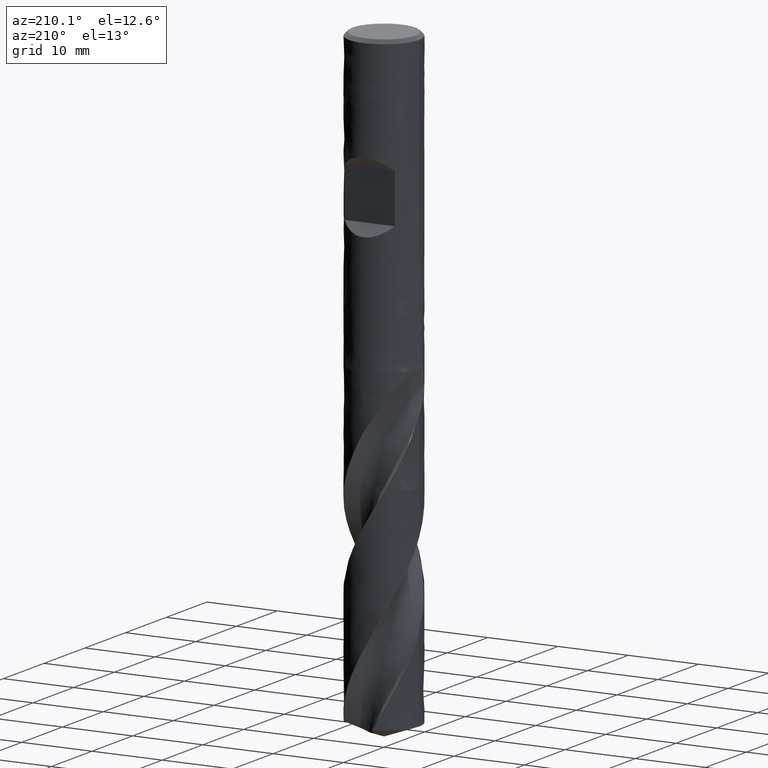
[diagram: clean part render]
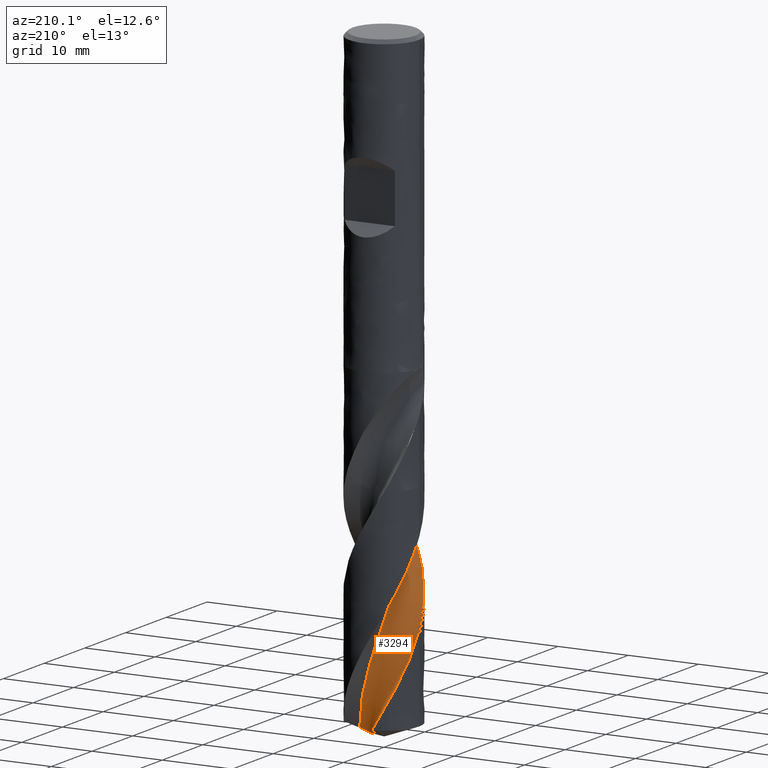
[diagram: same view with one face highlighted and labeled with its STEP entity id]
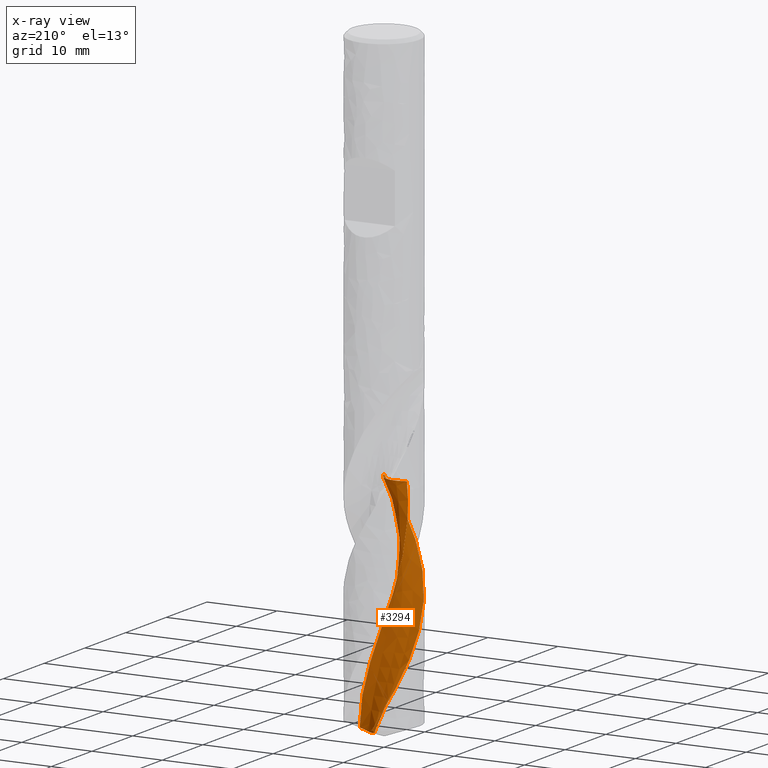
[diagram: x-ray of the same camera — body ghosted, the highlighted face saturated]
A machine part, auxiliary view. The second image highlights one B-rep face of the part: STEP entity #3294.
The next image is the same camera in x-ray: the body ghosted, the highlighted face saturated — about 0% of this face is hidden behind the body in this view.
In plain terms, the highlighted face is a freeform B-spline surface patch.
Its self-contained STEP definition (entity closure, byte-faithful):
#1899 = VERTEX_POINT('', #1900);
#1900 = CARTESIAN_POINT('', (-1.943946066787, -2.2761353100084, -57.));
#1906 = EDGE_CURVE('', #1899, #1907, #1909, .T.);
#1907 = VERTEX_POINT('', #1908);
#1908 = CARTESIAN_POINT('', (2.49888504584087, -4.33077054664327, -57.));
#1909 = B_SPLINE_CURVE_WITH_KNOTS('', 3, (#1910, #1911, #1912, #1913, #1914, #1915, #1916, #1917, #1918, #1919, #1920, #1921, #1922, #1923, #1924, #1925, #1926, #1927, #1928, #1929, #1930, #1931, #1932, #1933, #1934, #1935, #1936, #1937, #1938, #1939, #1940, #1941, #1942, #1943, #1944, #1945, #1946, #1947, #1948, #1949, #1950, #1951, #1952, #1953, #1954, #1955, #1956, #1957, #1958, #1959, #1960, #1961, #1962, #1963, #1964, #1965, #1966, #1967, #1968, #1969, #1970, #1971, #1972, #1973), .UNSPECIFIED., .F., .U., (4, 3, 3, 3, 3, 3, 3, 3, 3, 3, 3, 3, 3, 3, 3, 3, 3, 3, 3, 3, 3, 4), (0., 0.297376150028493, 0.594367108387545, 0.890982575190988, 1.18723009705755, 1.4831152333444, 1.77864167663977, 2.07381133312168, 2.36862436647171, 2.66307920740673, 2.8594675544147, 2.89837695632703, 3.1957271529752, 3.49269287368801, 3.78928366924074, 4.08550694952865, 4.38136814654139, 4.67687083203684, 4.97201679538179, 5.26680608513294, 5.56123701631977, 5.72273616709679), .UNSPECIFIED.);
#1910 = CARTESIAN_POINT('', (-1.94394606678699, -2.2761353100084, -57.));
#1911 = CARTESIAN_POINT('', (-1.85797356150517, -2.22679394847033, -57.));
#1912 = CARTESIAN_POINT('', (-1.76944407261665, -2.1816637274889, -57.));
#1913 = CARTESIAN_POINT('', (-1.67900884839017, -2.14107663789171, -57.));
#1914 = CARTESIAN_POINT('', (-1.58869076501374, -2.1005421207984, -57.));
#1915 = CARTESIAN_POINT('', (-1.49625085524377, -2.06443974368901, -57.));
#1916 = CARTESIAN_POINT('', (-1.40236737624665, -2.03303439968233, -57.));
#1917 = CARTESIAN_POINT('', (-1.30860259599298, -2.0016687620746, -57.));
#1918 = CARTESIAN_POINT('', (-1.21316901361972, -1.97491169215683, -57.));
#1919 = CARTESIAN_POINT('', (-1.11676508544159, -1.9529590187346, -57.));
#1920 = CARTESIAN_POINT('', (-1.02048074420762, -1.931033577119, -57.));
#1921 = CARTESIAN_POINT('', (-0.922994013113576, -1.91384720165759, -57.));
#1922 = CARTESIAN_POINT('', (-0.825016609200674, -1.90152536415722, -57.));
#1923 = CARTESIAN_POINT('', (-0.727159056411223, -1.88921859937778, -57.));
#1924 = CARTESIAN_POINT('', (-0.628574330360891, -1.88173455580945, -57.));
#1925 = CARTESIAN_POINT('', (-0.529980407622535, -1.87912773852788, -57.));
#1926 = CARTESIAN_POINT('', (-0.431506007444631, -1.87652408141549, -57.));
#1927 = CARTESIAN_POINT('', (-0.332783811336121, -1.87877949493968, -57.));
#1928 = CARTESIAN_POINT('', (-0.234531058069737, -1.88587759301818, -57.));
#1929 = CARTESIAN_POINT('', (-0.136396924600488, -1.89296712161718, -57.));
#1930 = CARTESIAN_POINT('', (-0.0384938747297053, -1.90490475831691, -57.));
#1931 = CARTESIAN_POINT('', (0.0584685173683539, -1.92160398243477, -57.));
#1932 = CARTESIAN_POINT('', (0.155313759782545, -1.93828303059798, -57.));
#1933 = CARTESIAN_POINT('', (0.251454165300081, -1.95975236130512, -57.));
#1934 = CARTESIAN_POINT('', (0.346194614588103, -1.98585674589081, -57.));
#1935 = CARTESIAN_POINT('', (0.440819955972164, -2.0119294141292, -57.));
#1936 = CARTESIAN_POINT('', (0.534276387144739, -2.04268857543289, -57.));
#1937 = CARTESIAN_POINT('', (0.625889832586888, -2.0779123724363, -57.));
#1938 = CARTESIAN_POINT('', (0.686991946095894, -2.10140508611313, -57.));
#1939 = CARTESIAN_POINT('', (0.747356968906936, -2.12691253730669, -57.));
#1940 = CARTESIAN_POINT('', (0.806791029678776, -2.15435280500469, -57.));
#1941 = CARTESIAN_POINT('', (0.81856639106394, -2.15978940254579, -57.));
#1942 = CARTESIAN_POINT('', (0.830306741690077, -2.16530248202443, -57.));
#1943 = CARTESIAN_POINT('', (0.842010600328535, -2.17089134787951, -57.));
#1944 = CARTESIAN_POINT('', (0.931452855841193, -2.2136021138993, -57.));
#1945 = CARTESIAN_POINT('', (1.01888280849404, -2.26080887943599, -57.));
#1946 = CARTESIAN_POINT('', (1.10365741057346, -2.31216443850669, -57.));
#1947 = CARTESIAN_POINT('', (1.18832239848482, -2.36345359447145, -57.));
#1948 = CARTESIAN_POINT('', (1.27054608158548, -2.41900629519376, -57.));
#1949 = CARTESIAN_POINT('', (1.34972526432922, -2.47841500429976, -57.));
#1950 = CARTESIAN_POINT('', (1.4288044817716, -2.53774870872267, -57.));
#1951 = CARTESIAN_POINT('', (1.50503990875809, -2.60107348302777, -57.));
#1952 = CARTESIAN_POINT('', (1.57787368847481, -2.66792594479262, -57.));
#1953 = CARTESIAN_POINT('', (1.65061721749514, -2.73469556750597, -57.));
#1954 = CARTESIAN_POINT('', (1.7201446487521, -2.80514667902638, -57.));
#1955 = CARTESIAN_POINT('', (1.78594846933808, -2.8787650240764, -57.));
#1956 = CARTESIAN_POINT('', (1.85167185579055, -2.95229338304745, -57.));
#1957 = CARTESIAN_POINT('', (1.913840372072, -3.0291597954236, -57.));
#1958 = CARTESIAN_POINT('', (1.97200132808736, -3.10880454600477, -57.));
#1959 = CARTESIAN_POINT('', (2.03009180722775, -3.18835278659861, -57.));
#1960 = CARTESIAN_POINT('', (2.08432519739078, -3.27086534887041, -57.));
#1961 = CARTESIAN_POINT('', (2.13430754413501, -3.35574285685854, -57.));
#1962 = CARTESIAN_POINT('', (2.18422955366035, -3.44051790321547, -57.));
#1963 = CARTESIAN_POINT('', (2.23003146101638, -3.52785707251576, -57.));
#1964 = CARTESIAN_POINT('', (2.27138135986519, -3.6171274560988, -57.));
#1965 = CARTESIAN_POINT('', (2.31268128880468, -3.7062899595395, -57.));
#1966 = CARTESIAN_POINT('', (2.34963956826356, -3.79759398341438, -57.));
#1967 = CARTESIAN_POINT('', (2.38198902354078, -3.89037948278518, -57.));
#1968 = CARTESIAN_POINT('', (2.4142991534261, -3.98305218810442, -57.));
#1969 = CARTESIAN_POINT('', (2.44208939980682, -4.07742566514547, -57.));
#1970 = CARTESIAN_POINT('', (2.46515935177571, -4.17281933433031, -57.));
#1971 = CARTESIAN_POINT('', (2.47781351700361, -4.22514398819991, -57.));
#1972 = CARTESIAN_POINT('', (2.48906530015112, -4.27784068838937, -57.));
#1973 = CARTESIAN_POINT('', (2.49888504584087, -4.33077054664327, -57.));
#2213 = VERTEX_POINT('', #2214);
#2214 = CARTESIAN_POINT('', (2.664890963748, 1.36431395231353, -87.9103363101733));
#2245 = EDGE_CURVE('', #2213, #1899, #2246, .T.);
#2246 = (
   BOUNDED_CURVE ()
   B_SPLINE_CURVE (3, (#2247, #2248, #2249, #2250, #2251, #2252, #2253, #2254, #2255, #2256, #2257, #2258, #2259, #2260, #2261, #2262, #2263, #2264, #2265, #2266, #2267, #2268, #2269, #2270, #2271, #2272, #2273, #2274, #2275, #2276, #2277, #2278, #2279, #2280, #2281, #2282, #2283), .UNSPECIFIED., .F., .U.)
   B_SPLINE_CURVE_WITH_KNOTS ((4, 1, 1, 1, 1, 1, 1, 1, 1, 1, 1, 1, 1, 1, 1, 1, 1, 1, 1, 1, 1, 1, 1, 1, 1, 1, 1, 1, 1, 1, 1, 1, 1, 1, 4), (1.13966368982672, 1.84588235294118, 2.76882352941176, 3.69176470588235, 4.61470588235294, 5.53764705882353, 6.46058823529412, 7.38352941176471, 8.30647058823529, 9.22941176470588, 10.1523529411765, 11.0752941176471, 11.9982352941176, 12.9211764705882, 13.8441176470588, 14.7670588235294, 15.69, 16.6129411764706, 17.5358823529412, 18.4588235294118, 19.3817647058824, 20.3047058823529, 21.2276470588235, 22.1505882352941, 23.0735294117647, 23.9964705882353, 24.9194117647059, 25.8423529411765, 26.7652941176471, 27.6882352941176, 28.6111764705882, 29.5341176470588, 30.4570588235294, 31.38, 32.05), .UNSPECIFIED.)
   CURVE ()
   GEOMETRIC_REPRESENTATION_ITEM ()
   RATIONAL_B_SPLINE_CURVE ((1., 1., 1., 1., 1., 1., 1., 1., 1., 1., 1., 1., 1., 1., 1., 1., 1., 1., 1., 1., 1., 1., 1., 1., 1., 1., 1., 1., 1., 1., 1., 1., 1., 1., 1., 1., 1.))
   REPRESENTATION_ITEM ('')
);
#2247 = CARTESIAN_POINT('', (2.664890963748, 1.36431395231353, -87.9103363101733));
#2248 = CARTESIAN_POINT('', (2.62642999897173, 1.43510392879712, -87.6749300891351));
#2249 = CARTESIAN_POINT('', (2.53129954278614, 1.59471649716094, -87.1318768092735));
#2250 = CARTESIAN_POINT('', (2.36023488456593, 1.82962736146804, -86.2811764705882));
#2251 = CARTESIAN_POINT('', (2.14967578241432, 2.06328340726644, -85.3582352941176));
#2252 = CARTESIAN_POINT('', (1.91650201256395, 2.27334430560004, -84.435294117647));
#2253 = CARTESIAN_POINT('', (1.66329460536174, 2.45767707679595, -83.5123529411765));
#2254 = CARTESIAN_POINT('', (1.3928284774366, 2.61442323535653, -82.5894117647059));
#2255 = CARTESIAN_POINT('', (1.10804563986073, 2.74201720429834, -81.6664705882353));
#2256 = CARTESIAN_POINT('', (0.812024554070752, 2.83920032396855, -80.7435294117647));
#2257 = CARTESIAN_POINT('', (0.507948972623372, 2.90503223994927, -79.8205882352941));
#2258 = CARTESIAN_POINT('', (0.199075740863782, 2.93889907605671, -78.8976470588235));
#2259 = CARTESIAN_POINT('', (-0.111297922487304, 2.94051847043869, -77.9747058823529));
#2260 = CARTESIAN_POINT('', (-0.419867422697814, 2.9099414076651, -77.0517647058823));
#2261 = CARTESIAN_POINT('', (-0.723353746303104, 2.84755085359159, -76.1288235294118));
#2262 = CARTESIAN_POINT('', (-1.01853608210486, 2.75405721479071, -75.2058823529412));
#2263 = CARTESIAN_POINT('', (-1.30228380859104, 2.63049067470409, -74.2829411764706));
#2264 = CARTESIAN_POINT('', (-1.5715875584372, 2.47819048425644, -73.36));
#2265 = CARTESIAN_POINT('', (-1.82358907911876, 2.29879131065543, -72.4370588235294));
#2266 = CARTESIAN_POINT('', (-2.05560961967127, 2.09420677287884, -71.5141176470588));
#2267 = CARTESIAN_POINT('', (-2.26517658658108, 1.86661031614434, -70.5911764705882));
#2268 = CARTESIAN_POINT('', (-2.45004822674199, 1.61841360021124, -69.6682352941176));
#2269 = CARTESIAN_POINT('', (-2.60823611223218, 1.3522425975412, -68.745294117647));
#2270 = CARTESIAN_POINT('', (-2.73802522022859, 1.07091161705879, -67.8223529411765));
#2271 = CARTESIAN_POINT('', (-2.83799142163729, 0.777395487136252, -66.8994117647059));
#2272 = CARTESIAN_POINT('', (-2.90701621354904, 0.474800148228188, -65.9764705882353));
#2273 = CARTESIAN_POINT('', (-2.9442985544122, 0.16633191791676, -65.0535294117647));
#2274 = CARTESIAN_POINT('', (-2.94936368250959, -0.144734288927696, -64.1305882352941));
#2275 = CARTESIAN_POINT('', (-2.92206883342864, -0.455087520188211, -63.2076470588235));
#2276 = CARTESIAN_POINT('', (-2.86260576213971, -0.761413748426952, -62.2847058823529));
#2277 = CARTESIAN_POINT('', (-2.77150013790735, -1.06042924455349, -61.3617647058824));
#2278 = CARTESIAN_POINT('', (-2.64960740165895, -1.34891289930997, -60.4388235294118));
#2279 = CARTESIAN_POINT('', (-2.49810659226121, -1.62374151493769, -59.5158823529412));
#2280 = CARTESIAN_POINT('', (-2.31848662663383, -1.8819116117339, -58.5929411764706));
#2281 = CARTESIAN_POINT('', (-2.13135922578749, -2.09880204824288, -57.7543137254902));
#2282 = CARTESIAN_POINT('', (-2.00082548673635, -2.22509939446573, -57.2233333333333));
#2283 = CARTESIAN_POINT('', (-1.943946066787, -2.2761353100084, -57.));
#3177 = EDGE_CURVE('', #1907, #3178, #3180, .T.);
#3178 = VERTEX_POINT('', #3179);
#3179 = CARTESIAN_POINT('', (1.1566916907648, -4.86436679666692, -59.5164099374215));
#3180 = B_SPLINE_CURVE_WITH_KNOTS('', 3, (#3181, #3182, #3183, #3184, #3185, #3186, #3187, #3188, #3189, #3190, #3191, #3192, #3193), .UNSPECIFIED., .F., .U., (4, 3, 3, 3, 4), (6.06441392951674, 6.82179919602982, 7.81814487985161, 8.81417588092939, 8.96811837034174), .UNSPECIFIED.);
#3181 = CARTESIAN_POINT('', (2.49888504584087, -4.33077054664327, -57.));
#3182 = CARTESIAN_POINT('', (2.38969221864414, -4.39377557543809, -57.2187332412499));
#3183 = CARTESIAN_POINT('', (2.278100000907, -4.45265584305964, -57.4375579107154));
#3184 = CARTESIAN_POINT('', (2.16449076685904, -4.50721418618881, -57.6563118069695));
#3185 = CARTESIAN_POINT('', (2.01503701460013, -4.57898607309583, -57.9440841072619));
#3186 = CARTESIAN_POINT('', (1.86197506396421, -4.64333106018895, -58.2319526453618));
#3187 = CARTESIAN_POINT('', (1.70616964253585, -4.69989203608847, -58.5197478004442));
#3188 = CARTESIAN_POINT('', (1.55041343021067, -4.75643514794404, -58.8074520591934));
#3189 = CARTESIAN_POINT('', (1.3918206533134, -4.80523409699811, -59.0952602127512));
#3190 = CARTESIAN_POINT('', (1.23127317654732, -4.84602583203134, -59.3829951667204));
#3191 = CARTESIAN_POINT('', (1.20645961329929, -4.8523304362371, -59.4274663077362));
#3192 = CARTESIAN_POINT('', (1.18159802976536, -4.85844434949681, -59.4719381234759));
#3193 = CARTESIAN_POINT('', (1.15669169076486, -4.86436679666691, -59.5164099374214));
#3294 = ADVANCED_FACE('', (#3295), #3472, .T.);
#3295 = FACE_OUTER_BOUND('', #3296, .T.);
#3296 = EDGE_LOOP('', (#3297, #3298, #3299, #3422, #3437, #3471));
#3297 = ORIENTED_EDGE('', *, *, #1906, .F.);
#3298 = ORIENTED_EDGE('', *, *, #2245, .F.);
#3299 = ORIENTED_EDGE('', *, *, #3300, .T.);
#3300 = EDGE_CURVE('', #2213, #3301, #3303, .T.);
#3301 = VERTEX_POINT('', #3302);
#3302 = CARTESIAN_POINT('', (-1.06848472938849, 4.88450001362101, -87.180148828669));
#3303 = B_SPLINE_CURVE_WITH_KNOTS('', 3, (#3304, #3305, #3306, #3307, #3308, #3309, #3310, #3311, #3312, #3313, #3314, #3315, #3316, #3317, #3318, #3319, #3320, #3321, #3322, #3323, #3324, #3325, #3326, #3327, #3328, #3329, #3330, #3331, #3332, #3333, #3334, #3335, #3336, #3337, #3338, #3339, #3340, #3341, #3342, #3343, #3344, #3345, #3346, #3347, #3348, #3349, #3350, #3351, #3352, #3353, #3354, #3355, #3356, #3357, #3358, #3359, #3360, #3361, #3362, #3363, #3364, #3365, #3366, #3367, #3368, #3369, #3370, #3371, #3372, #3373, #3374, #3375, #3376, #3377, #3378, #3379, #3380, #3381, #3382, #3383, #3384, #3385, #3386, #3387, #3388, #3389, #3390, #3391, #3392, #3393, #3394, #3395, #3396, #3397, #3398, #3399, #3400, #3401, #3402, #3403, #3404, #3405, #3406, #3407, #3408, #3409, #3410, #3411, #3412, #3413, #3414, #3415, #3416, #3417, #3418, #3419, #3420, #3421), .UNSPECIFIED., .F., .U., (4, 3, 3, 3, 3, 3, 3, 3, 3, 3, 3, 3, 3, 3, 3, 3, 3, 3, 3, 3, 3, 3, 3, 3, 3, 3, 3, 3, 3, 3, 3, 3, 3, 3, 3, 3, 3, 3, 3, 4), (0., 0.197311608456988, 0.394426137177449, 0.591270898263195, 0.722394193149912, 0.853404632999981, 0.984298542771566, 1.1150818914677, 1.24577332454157, 1.37640557759563, 1.50702375916283, 1.63767955734445, 1.76842203120691, 1.89928767974293, 2.03029348273707, 2.16143547447586, 2.29269273475366, 2.42403438861126, 2.55542668277052, 2.68683821437715, 2.81824278506341, 2.90583155846242, 2.93179391962157, 3.06371749962209, 3.10268698378051, 3.14168118420531, 3.34051841214481, 3.53887896757993, 3.73684550373206, 3.93448606408614, 4.13185489230583, 4.32899444299252, 4.52593756193721, 4.72270943490355, 4.91932919221835, 5.11581117521406, 5.31216591135465, 5.50840085234765, 5.80188165608003, 5.96621023325195), .UNSPECIFIED.);
#3304 = CARTESIAN_POINT('', (2.664890963748, 1.36431395231353, -87.9103363101733));
#3305 = CARTESIAN_POINT('', (2.60473043398158, 1.34935673497477, -87.9323080131903));
#3306 = CARTESIAN_POINT('', (2.54380334798653, 1.33693238858383, -87.9540740705926));
#3307 = CARTESIAN_POINT('', (2.48237976544271, 1.32716865278358, -87.9754651060157));
#3308 = CARTESIAN_POINT('', (2.42101753429913, 1.31741466924522, -87.9968347755411));
#3309 = CARTESIAN_POINT('', (2.35905438100487, 1.31029984830585, -88.0178672443152));
#3310 = CARTESIAN_POINT('', (2.29677988474393, 1.30592479457283, -88.0383580325306));
#3311 = CARTESIAN_POINT('', (2.23459061631307, 1.3015557284649, -88.0588207773973));
#3312 = CARTESIAN_POINT('', (2.17197771604358, 1.29991180005495, -88.078780754545));
#3313 = CARTESIAN_POINT('', (2.10924918819991, 1.30105776932835, -88.0979936752779));
#3314 = CARTESIAN_POINT('', (2.06746412260362, 1.30182112856706, -88.1107918897542));
#3315 = CARTESIAN_POINT('', (2.02558366750209, 1.30382190741821, -88.1232715142702));
#3316 = CARTESIAN_POINT('', (1.98370355472888, 1.30706788984404, -88.1353499442257));
#3317 = CARTESIAN_POINT('', (1.94185948727978, 1.3103110785217, -88.1474179785328));
#3318 = CARTESIAN_POINT('', (1.89997840026036, 1.31480039065715, -88.1590961847967));
#3319 = CARTESIAN_POINT('', (1.85815946433537, 1.32053224572603, -88.1702945838383));
#3320 = CARTESIAN_POINT('', (1.81637772517035, 1.32625900247206, -88.1814830222208));
#3321 = CARTESIAN_POINT('', (1.77461923657037, 1.3332315947184, -88.1922026958083));
#3322 = CARTESIAN_POINT('', (1.73298637451085, 1.34143278307359, -88.2023582819665));
#3323 = CARTESIAN_POINT('', (1.69138867813636, 1.34962704419889, -88.2125052900898));
#3324 = CARTESIAN_POINT('', (1.64987633834907, 1.35905590417181, -88.2220986144094));
#3325 = CARTESIAN_POINT('', (1.60855438294979, 1.36968606326562, -88.2310413070984));
#3326 = CARTESIAN_POINT('', (1.56726146896353, 1.38030875139545, -88.2399777147887));
#3327 = CARTESIAN_POINT('', (1.52611764068763, 1.39214176059882, -88.248272842004));
#3328 = CARTESIAN_POINT('', (1.48522939889734, 1.40513366731079, -88.2558337727849));
#3329 = CARTESIAN_POINT('', (1.44435967222239, 1.41811969099525, -88.2633912798064));
#3330 = CARTESIAN_POINT('', (1.40370377856095, 1.43227683157878, -88.2702224104059));
#3331 = CARTESIAN_POINT('', (1.36336755967852, 1.44753453242847, -88.2762456398592));
#3332 = CARTESIAN_POINT('', (1.32303568574582, 1.46279058974426, -88.2822682205004));
#3333 = CARTESIAN_POINT('', (1.28298210832954, 1.47916254190769, -88.2874887353185));
#3334 = CARTESIAN_POINT('', (1.24330876826484, 1.49656158969813, -88.2918451147121));
#3335 = CARTESIAN_POINT('', (1.20362400271007, 1.51396564822493, -88.2962027486956));
#3336 = CARTESIAN_POINT('', (1.16427950184612, 1.53241480478802, -88.2996998031771));
#3337 = CARTESIAN_POINT('', (1.12536921450159, 1.55180541626923, -88.3023006817644));
#3338 = CARTESIAN_POINT('', (1.08643311448212, 1.57120889127793, -88.3049032857472));
#3339 = CARTESIAN_POINT('', (1.04789374422034, 1.59157366916728, -88.3066109749068));
#3340 = CARTESIAN_POINT('', (1.00983290927558, 1.61278708092148, -88.3074186132448));
#3341 = CARTESIAN_POINT('', (0.971736216580983, 1.63402047818605, -88.3082270124724));
#3342 = CARTESIAN_POINT('', (0.934084000135683, 1.65612312890518, -88.3081346232103));
#3343 = CARTESIAN_POINT('', (0.896942804016946, 1.67898057378459, -88.3071664148512));
#3344 = CARTESIAN_POINT('', (0.859761830429682, 1.70186249852436, -88.3061971695606));
#3345 = CARTESIAN_POINT('', (0.823061856540289, 1.72551950365323, -88.3043498893957));
#3346 = CARTESIAN_POINT('', (0.786892961427111, 1.74984239293527, -88.3016750442802));
#3347 = CARTESIAN_POINT('', (0.750686466480122, 1.77419056738546, -88.2989974184955));
#3348 = CARTESIAN_POINT('', (0.714985279914088, 1.79922366568024, -88.2954891195911));
#3349 = CARTESIAN_POINT('', (0.679823942421126, 1.82484314347611, -88.2912187263516));
#3350 = CARTESIAN_POINT('', (0.644631699525943, 1.8504851397631, -88.2869445796082));
#3351 = CARTESIAN_POINT('', (0.609957626565729, 1.87673072329027, -88.2819048435921));
#3352 = CARTESIAN_POINT('', (0.575823285830159, 1.90349497579515, -88.2761780788542));
#3353 = CARTESIAN_POINT('', (0.541666997971799, 1.93027643672777, -88.2704476320177));
#3354 = CARTESIAN_POINT('', (0.508032432127578, 1.95759170381692, -88.2640266264439));
#3355 = CARTESIAN_POINT('', (0.47493150449464, 1.985370148808, -88.2569964589771));
#3356 = CARTESIAN_POINT('', (0.441817814414211, 2.01315930410151, -88.2499635809476));
#3357 = CARTESIAN_POINT('', (0.409222865352581, 2.04142474367173, -88.2423181717006));
#3358 = CARTESIAN_POINT('', (0.377152233899723, 2.0701091292251, -88.2341391974563));
#3359 = CARTESIAN_POINT('', (0.345076906912101, 2.0987977145252, -88.2259590257097));
#3360 = CARTESIAN_POINT('', (0.313513533689971, 2.12791653642905, -88.2172421578539));
#3361 = CARTESIAN_POINT('', (0.282464136042368, 2.15741965196747, -88.2080618628186));
#3362 = CARTESIAN_POINT('', (0.251416383093538, 2.1869212047143, -88.198882054067));
#3363 = CARTESIAN_POINT('', (0.220872243056154, 2.2168168212109, -88.1892359300427));
#3364 = CARTESIAN_POINT('', (0.190832267051942, 2.24706978266845, -88.1791894564786));
#3365 = CARTESIAN_POINT('', (0.17080887945284, 2.26723513743439, -88.1724928987267));
#3366 = CARTESIAN_POINT('', (0.151006246432177, 2.28756265506674, -88.1656172542574));
#3367 = CARTESIAN_POINT('', (0.131424492811996, 2.30804327076039, -88.158580154324));
#3368 = CARTESIAN_POINT('', (0.125620226581427, 2.31411397047185, -88.1564942736467));
#3369 = CARTESIAN_POINT('', (0.119835234972066, 2.32019826640503, -88.1543941509659));
#3370 = CARTESIAN_POINT('', (0.11406952288014, 2.32629594297111, -88.1522802199759));
#3371 = CARTESIAN_POINT('', (0.0847719803432273, 2.35728030981481, -88.1415386182254));
#3372 = CARTESIAN_POINT('', (0.0559678606536967, 2.38861440620359, -88.1304394417284));
#3373 = CARTESIAN_POINT('', (0.0276583587843589, 2.42027309322531, -88.1190351164287));
#3374 = CARTESIAN_POINT('', (0.0192958910236617, 2.42962489145854, -88.1156663428242));
#3375 = CARTESIAN_POINT('', (0.0109762089379192, 2.43900546206707, -88.1122707456287));
#3376 = CARTESIAN_POINT('', (0.00269936375616761, 2.44841423115792, -88.108849557111));
#3377 = CARTESIAN_POINT('', (-0.00558273098725017, 2.45782896772944, -88.1054261987157));
#3378 = CARTESIAN_POINT('', (-0.0138220959734632, 2.46727212226654, -88.1019771496864));
#3379 = CARTESIAN_POINT('', (-0.022018669046464, 2.47674314840534, -88.0985035932252));
#3380 = CARTESIAN_POINT('', (-0.0638142142989553, 2.52503731940172, -88.0807914121748));
#3381 = CARTESIAN_POINT('', (-0.104509500143528, 2.57406905418061, -88.062439259059));
#3382 = CARTESIAN_POINT('', (-0.144091451654882, 2.62377518661742, -88.0435849379239));
#3383 = CARTESIAN_POINT('', (-0.183578513350325, 2.67336215853848, -88.0247758162544));
#3384 = CARTESIAN_POINT('', (-0.221975147546759, 2.72364272247119, -88.0054581559367));
#3385 = CARTESIAN_POINT('', (-0.259259811252059, 2.77456430862334, -87.9857420508511));
#3386 = CARTESIAN_POINT('', (-0.296470413476599, 2.82538474519553, -87.9660651094268));
#3387 = CARTESIAN_POINT('', (-0.332588832346824, 2.8768649502233, -87.9459828015988));
#3388 = CARTESIAN_POINT('', (-0.367585304020632, 2.92895778413288, -87.9255839942618));
#3389 = CARTESIAN_POINT('', (-0.402524149779452, 2.98096484090338, -87.9052187760234));
#3390 = CARTESIAN_POINT('', (-0.436358623587841, 3.03360341939649, -87.8845296919376));
#3391 = CARTESIAN_POINT('', (-0.469051389989632, 3.08682838089677, -87.8635896463532));
#3392 = CARTESIAN_POINT('', (-0.501699207747392, 3.13998016444023, -87.8426783908272));
#3393 = CARTESIAN_POINT('', (-0.533221277817828, 3.19373780177895, -87.8215083935054));
#3394 = CARTESIAN_POINT('', (-0.563573407668457, 3.24805578089878, -87.8001407061309));
#3395 = CARTESIAN_POINT('', (-0.593890278347127, 3.30231066042806, -87.7787978409671));
#3396 = CARTESIAN_POINT('', (-0.623051939961373, 3.35714626643781, -87.7572490786548));
#3397 = CARTESIAN_POINT('', (-0.651007997709078, 3.41251495438349, -87.7355467809823));
#3398 = CARTESIAN_POINT('', (-0.678936199772299, 3.46782847243663, -87.7138661076877));
#3399 = CARTESIAN_POINT('', (-0.705672543878804, 3.52369665531611, -87.6920232272253));
#3400 = CARTESIAN_POINT('', (-0.731161002820102, 3.5800683051016, -87.6700642448794));
#3401 = CARTESIAN_POINT('', (-0.756627299036898, 3.63639093861086, -87.6481243563075));
#3402 = CARTESIAN_POINT('', (-0.780858611094167, 3.69324008018791, -87.6260591763011));
#3403 = CARTESIAN_POINT('', (-0.803793783733973, 3.75055972334059, -87.6039104435203));
#3404 = CARTESIAN_POINT('', (-0.826711226203928, 3.80783505520663, -87.5817788329474));
#3405 = CARTESIAN_POINT('', (-0.848344646846407, 3.86560564112371, -87.55955389927));
#3406 = CARTESIAN_POINT('', (-0.868628240146006, 3.92380946812251, -87.5372745060594));
#3407 = CARTESIAN_POINT('', (-0.88889762043724, 3.98197251085455, -87.5150107243432));
#3408 = CARTESIAN_POINT('', (-0.907828503466471, 4.04059551503172, -87.4926820615316));
#3409 = CARTESIAN_POINT('', (-0.925350932784143, 4.09960925269722, -87.4703257082712));
#3410 = CARTESIAN_POINT('', (-0.942862014119721, 4.15858477152752, -87.4479838335681));
#3411 = CARTESIAN_POINT('', (-0.958975120644514, 4.21797997832995, -87.4256031191603));
#3412 = CARTESIAN_POINT('', (-0.973616719663896, 4.27771717008402, -87.40322007523));
#3413 = CARTESIAN_POINT('', (-0.988249385909106, 4.33741791644419, -87.3808506870948));
#3414 = CARTESIAN_POINT('', (-1.00142005010351, 4.39749211500212, -87.3584670110496));
#3415 = CARTESIAN_POINT('', (-1.01305231242274, 4.45785225527397, -87.3361057163052));
#3416 = CARTESIAN_POINT('', (-1.03044903941438, 4.54812436680896, -87.3026630953281));
#3417 = CARTESIAN_POINT('', (-1.04442240842457, 4.63913710809517, -87.2692339252313));
#3418 = CARTESIAN_POINT('', (-1.05470870667291, 4.73054917993381, -87.2359452737216));
#3419 = CARTESIAN_POINT('', (-1.06046830912056, 4.78173350105649, -87.2173059737435));
#3420 = CARTESIAN_POINT('', (-1.06507585246097, 4.83307346415666, -87.1986993224926));
#3421 = CARTESIAN_POINT('', (-1.06848472938849, 4.88450001362101, -87.180148828669));
#3422 = ORIENTED_EDGE('', *, *, #3423, .F.);
#3423 = EDGE_CURVE('', #3424, #3301, #3426, .T.);
#3424 = VERTEX_POINT('', #3425);
#3425 = CARTESIAN_POINT('', (-2.06234287848034, 4.55485914728232, -85.3295861102953));
#3426 = B_SPLINE_CURVE_WITH_KNOTS('', 3, (#3427, #3428, #3429, #3430, #3431, #3432, #3433, #3434, #3435, #3436), .UNSPECIFIED., .F., .U., (4, 3, 3, 4), (0., 0.996320192689999, 1.99234379399905, 2.12701670075935), .UNSPECIFIED.);
#3427 = CARTESIAN_POINT('', (-2.06234287848034, 4.55485914728232, -85.3295861102953));
#3428 = CARTESIAN_POINT('', (-1.91309765351577, 4.62243419557696, -85.6184707869054));
#3429 = CARTESIAN_POINT('', (-1.7605067736599, 4.68267439386801, -85.9074546527199));
#3430 = CARTESIAN_POINT('', (-1.60539947318067, 4.73526055582055, -86.1963686565619));
#3431 = CARTESIAN_POINT('', (-1.45033834609909, 4.78783106356623, -86.4851966545154));
#3432 = CARTESIAN_POINT('', (-1.29266979174429, 4.83278349994717, -86.7741230589411));
#3433 = CARTESIAN_POINT('', (-1.13324813510591, 4.86988179161251, -87.0629788637443));
#3434 = CARTESIAN_POINT('', (-1.11169264397918, 4.87489787232369, -87.1020352182486));
#3435 = CARTESIAN_POINT('', (-1.0901041415637, 4.8797707656523, -87.1410920197692));
#3436 = CARTESIAN_POINT('', (-1.06848472938849, 4.88450001362101, -87.180148828669));
#3437 = ORIENTED_EDGE('', *, *, #3438, .T.);
#3438 = EDGE_CURVE('', #3424, #3178, #3439, .T.);
#3439 = B_SPLINE_CURVE_WITH_KNOTS('', 3, (#3440, #3441, #3442, #3443, #3444, #3445, #3446, #3447, #3448, #3449, #3450, #3451, #3452, #3453, #3454, #3455, #3456, #3457, #3458, #3459, #3460, #3461, #3462, #3463, #3464, #3465, #3466, #3467, #3468, #3469, #3470), .UNSPECIFIED., .F., .U., (4, 1, 1, 1, 1, 1, 1, 1, 1, 1, 1, 1, 1, 1, 1, 1, 1, 1, 1, 1, 1, 1, 1, 1, 1, 1, 1, 1, 4), (3.72041388970475, 4.61470588235294, 5.53764705882353, 6.46058823529412, 7.38352941176471, 8.30647058823529, 9.22941176470588, 10.1523529411765, 11.0752941176471, 11.9982352941176, 12.9211764705882, 13.8441176470588, 14.7670588235294, 15.69, 16.6129411764706, 17.5358823529412, 18.4588235294118, 19.3817647058824, 20.3047058823529, 21.2276470588235, 22.1505882352941, 23.0735294117647, 23.9964705882353, 24.9194117647059, 25.8423529411765, 26.7652941176471, 27.6882352941176, 28.6111764705882, 29.5335900625785), .UNSPECIFIED.);
#3440 = CARTESIAN_POINT('', (-2.06234287848036, 4.55485914728232, -85.3295861102953));
#3441 = CARTESIAN_POINT('', (-2.21606429157938, 4.48141331401899, -85.0314887794125));
#3442 = CARTESIAN_POINT('', (-2.52056976688529, 4.31657023400266, -84.4257443897063));
#3443 = CARTESIAN_POINT('', (-2.95107309265295, 4.022930882846, -83.5123529411765));
#3444 = CARTESIAN_POINT('', (-3.35215483792132, 3.68329982974799, -82.5894117647059));
#3445 = CARTESIAN_POINT('', (-3.71517197604399, 3.30452032800583, -81.6664705882353));
#3446 = CARTESIAN_POINT('', (-4.0363913159483, 2.89075511347794, -80.7435294117647));
#3447 = CARTESIAN_POINT('', (-4.31252413175818, 2.4465135766729, -79.8205882352941));
#3448 = CARTESIAN_POINT('', (-4.5407573056415, 1.97660540191955, -78.8976470588235));
#3449 = CARTESIAN_POINT('', (-4.71877979842737, 1.48609160815128, -77.974705882353));
#3450 = CARTESIAN_POINT('', (-4.84480420429754, 0.980233338328549, -77.0517647058823));
#3451 = CARTESIAN_POINT('', (-4.91758322049717, 0.464438904895105, -76.1288235294118));
#3452 = CARTESIAN_POINT('', (-4.93642089912984, -0.0557904274331159, -75.2058823529412));
#3453 = CARTESIAN_POINT('', (-4.90117859554682, -0.57491542133544, -74.2829411764706));
#3454 = CARTESIAN_POINT('', (-4.81227557285403, -1.08741410693718, -73.36));
#3455 = CARTESIAN_POINT('', (-4.67068426793078, -1.5878367787334, -72.4370588235294));
#3456 = CARTESIAN_POINT('', (-4.47792026980971, -2.07086024929708, -71.5141176470588));
#3457 = CARTESIAN_POINT('', (-4.23602710625816, -2.5313408667288, -70.5911764705882));
#3458 = CARTESIAN_POINT('', (-3.94755597856626, -2.96436581373145, -69.6682352941177));
#3459 = CARTESIAN_POINT('', (-3.61554062758607, -3.36530222085094, -68.745294117647));
#3460 = CARTESIAN_POINT('', (-3.24346755577358, -3.72984364467119, -67.8223529411765));
#3461 = CARTESIAN_POINT('', (-2.83524186975589, -4.05405348372223, -66.8994117647059));
#3462 = CARTESIAN_POINT('', (-2.39514904671915, -4.33440492945328, -65.9764705882353));
#3463 = CARTESIAN_POINT('', (-1.92781296088833, -4.56781708030576, -65.0535294117647));
#3464 = CARTESIAN_POINT('', (-1.43815055021293, -4.75168686999664, -64.1305882352941));
#3465 = CARTESIAN_POINT('', (-0.931323494680811, -4.88391652689033, -63.2076470588235));
#3466 = CARTESIAN_POINT('', (-0.412687451911481, -4.96293620114668, -62.2847058823529));
#3467 = CARTESIAN_POINT('', (0.1122611270117, -4.98772187324143, -61.3617647058824));
#3468 = CARTESIAN_POINT('', (0.637838350550557, -4.95781276662139, -60.4389993909052));
#3469 = CARTESIAN_POINT('', (0.984936422897525, -4.90149657518269, -59.8238811347516));
#3470 = CARTESIAN_POINT('', (1.1566916907648, -4.86436679666692, -59.5164099374215));
#3471 = ORIENTED_EDGE('', *, *, #3177, .F.);
#3472 = (
   BOUNDED_SURFACE ()
   B_SPLINE_SURFACE (3, 2, ((#3473, #3474, #3475, #3476, #3477), (#3478, #3479, #3480, #3481, #3482), (#3483, #3484, #3485, #3486, #3487), (#3488, #3489, #3490, #3491, #3492), (#3493, #3494, #3495, #3496, #3497), (#3498, #3499, #3500, #3501, #3502), (#3503, #3504, #3505, #3506, #3507), (#3508, #3509, #3510, #3511, #3512), (#3513, #3514, #3515, #3516, #3517), (#3518, #3519, #3520, #3521, #3522), (#3523, #3524, #3525, #3526, #3527), (#3528, #3529, #3530, #3531, #3532), (#3533, #3534, #3535, #3536, #3537), (#3538, #3539, #3540, #3541, #3542), (#3543, #3544, #3545, #3546, #3547), (#3548, #3549, #3550, #3551, #3552), (#3553, #3554, #3555, #3556, #3557), (#3558, #3559, #3560, #3561, #3562), (#3563, #3564, #3565, #3566, #3567), (#3568, #3569, #3570, #3571, #3572), (#3573, #3574, #3575, #3576, #3577), (#3578, #3579, #3580, #3581, #3582), (#3583, #3584, #3585, #3586, #3587), (#3588, #3589, #3590, #3591, #3592), (#3593, #3594, #3595, #3596, #3597), (#3598, #3599, #3600, #3601, #3602), (#3603, #3604, #3605, #3606, #3607), (#3608, #3609, #3610, #3611, #3612), (#3613, #3614, #3615, #3616, #3617), (#3618, #3619, #3620, #3621, #3622), (#3623, #3624, #3625, #3626, #3627), (#3628, #3629, #3630, #3631, #3632), (#3633, #3634, #3635, #3636, #3637), (#3638, #3639, #3640, #3641, #3642), (#3643, #3644, #3645, #3646, #3647), (#3648, #3649, #3650, #3651, #3652), (#3653, #3654, #3655, #3656, #3657)), .UNSPECIFIED., .F., .F., .U.)
   B_SPLINE_SURFACE_WITH_KNOTS ((4, 1, 1, 1, 1, 1, 1, 1, 1, 1, 1, 1, 1, 1, 1, 1, 1, 1, 1, 1, 1, 1, 1, 1, 1, 1, 1, 1, 1, 1, 1, 1, 1, 1, 4), (3, 2, 3), (0.741772987522061, 1.84588235294118, 2.76882352941176, 3.69176470588235, 4.61470588235294, 5.53764705882353, 6.46058823529412, 7.38352941176471, 8.30647058823529, 9.22941176470588, 10.1523529411765, 11.0752941176471, 11.9982352941176, 12.9211764705882, 13.8441176470588, 14.7670588235294, 15.69, 16.6129411764706, 17.5358823529412, 18.4588235294118, 19.3817647058824, 20.3047058823529, 21.2276470588235, 22.1505882352941, 23.0735294117647, 23.9964705882353, 24.9194117647059, 25.8423529411765, 26.7652941176471, 27.6882352941176, 28.6111764705882, 29.5341176470588, 30.4570588235294, 31.38, 32.0500000000064), (0., 0.5, 1.), .UNSPECIFIED.)
   GEOMETRIC_REPRESENTATION_ITEM ()
   RATIONAL_B_SPLINE_SURFACE (((1., 0.887010833178222, 1., 0.887010833178222, 1.), (1., 0.887010833178222, 1., 0.887010833178222, 1.), (1., 0.887010833178222, 1., 0.887010833178222, 1.), (1., 0.887010833178222, 1., 0.887010833178222, 1.), (1., 0.887010833178222, 1., 0.887010833178222, 1.), (1., 0.887010833178222, 1., 0.887010833178222, 1.), (1., 0.887010833178222, 1., 0.887010833178222, 1.), (1., 0.887010833178222, 1., 0.887010833178222, 1.), (1., 0.887010833178222, 1., 0.887010833178222, 1.), (1., 0.887010833178222, 1., 0.887010833178222, 1.), (1., 0.887010833178222, 1., 0.887010833178222, 1.), (1., 0.887010833178221, 1., 0.887010833178221, 1.), (1., 0.887010833178222, 1., 0.887010833178222, 1.), (1., 0.887010833178222, 1., 0.887010833178222, 1.), (1., 0.887010833178222, 1., 0.887010833178222, 1.), (1., 0.887010833178222, 1., 0.887010833178222, 1.), (1., 0.887010833178222, 1., 0.887010833178222, 1.), (1., 0.887010833178221, 1., 0.887010833178221, 1.), (1., 0.887010833178222, 1., 0.887010833178222, 1.), (1., 0.887010833178221, 1., 0.887010833178221, 1.), (1., 0.887010833178222, 1., 0.887010833178222, 1.), (1., 0.887010833178222, 1., 0.887010833178222, 1.), (1., 0.887010833178222, 1., 0.887010833178222, 1.), (1., 0.887010833178221, 1., 0.887010833178221, 1.), (1., 0.887010833178222, 1., 0.887010833178222, 1.), (1., 0.887010833178222, 1., 0.887010833178222, 1.), (1., 0.887010833178221, 1., 0.887010833178221, 1.), (1., 0.887010833178222, 1., 0.887010833178222, 1.), (1., 0.887010833178222, 1., 0.887010833178222, 1.), (1., 0.887010833178222, 1., 0.887010833178222, 1.), (1., 0.887010833178222, 1., 0.887010833178222, 1.), (1., 0.887010833178222, 1., 0.887010833178222, 1.), (1., 0.887010833178222, 1., 0.887010833178222, 1.), (1., 0.887010833178222, 1., 0.887010833178222, 1.), (1., 0.887010833178222, 1., 0.887010833178222, 1.), (1., 0.887010833178222, 1., 0.887010833178222, 1.), (1., 0.887010833178222, 1., 0.887010833178222, 1.)))
   REPRESENTATION_ITEM ('')
   SURFACE ()
);
#3473 = CARTESIAN_POINT('', (-0.426640552791577, 5.02093795209942, -88.3082270124779));
#3474 = CARTESIAN_POINT('', (-0.835128564910062, 3.51153090332899, -88.3082270124779));
#3475 = CARTESIAN_POINT('', (0.167006206471407, 2.31115679709769, -88.3082270124779));
#3476 = CARTESIAN_POINT('', (1.16914097785288, 1.11078269086639, -88.3082270124779));
#3477 = CARTESIAN_POINT('', (2.72723077179627, 1.24317713535638, -88.3082270124779));
#3478 = CARTESIAN_POINT('', (-0.637360273277336, 4.99767954289716, -87.9401905573382));
#3479 = CARTESIAN_POINT('', (-0.981933041409574, 3.47268996577947, -87.9401905573382));
#3480 = CARTESIAN_POINT('', (0.0696264677968837, 2.31573439124198, -87.9401905573382));
#3481 = CARTESIAN_POINT('', (1.12118597700334, 1.15877881670448, -87.9401905573382));
#3482 = CARTESIAN_POINT('', (2.67205825693897, 1.35656348290279, -87.9401905573382));
#3483 = CARTESIAN_POINT('', (-1.02094601285189, 4.9309647348848, -87.264507043375));
#3484 = CARTESIAN_POINT('', (-1.24658286590771, 3.38471752416601, -87.264507043375));
#3485 = CARTESIAN_POINT('', (-0.109391284356482, 2.31299566987658, -87.264507043375));
#3486 = CARTESIAN_POINT('', (1.02780029719474, 1.24127381558715, -87.264507043375));
#3487 = CARTESIAN_POINT('', (2.55796973983968, 1.5580922224202, -87.264507043375));
#3488 = CARTESIAN_POINT('', (-1.5626625926854, 4.77138429903358, -86.2811764705882));
#3489 = CARTESIAN_POINT('', (-1.61339563950391, 3.21417619789719, -86.2811764705883));
#3490 = CARTESIAN_POINT('', (-0.366904720274049, 2.279440245576, -86.2811764705882));
#3491 = CARTESIAN_POINT('', (0.879586198955811, 1.34470429325482, -86.2811764705883));
#3492 = CARTESIAN_POINT('', (2.36023488456593, 1.82962736146804, -86.2811764705882));
#3493 = CARTESIAN_POINT('', (-2.05165313787938, 4.57008506459317, -85.3582352941176));
#3494 = CARTESIAN_POINT('', (-1.93842966821409, 3.01967752724083, -85.3582352941176));
#3495 = CARTESIAN_POINT('', (-0.603467850268935, 2.22314753371228, -85.3582352941176));
#3496 = CARTESIAN_POINT('', (0.731493967676219, 1.42661754018374, -85.3582352941176));
#3497 = CARTESIAN_POINT('', (2.14967578241432, 2.06328340726644, -85.3582352941176));
#3498 = CARTESIAN_POINT('', (-2.51606875075983, 4.31964030425651, -84.435294117647));
#3499 = CARTESIAN_POINT('', (-2.24083884397822, 2.79297262613515, -84.4352941176471));
#3500 = CARTESIAN_POINT('', (-0.832400505386159, 2.1427671606156, -84.435294117647));
#3501 = CARTESIAN_POINT('', (0.576037833205904, 1.49256169509604, -84.4352941176471));
#3502 = CARTESIAN_POINT('', (1.91650201256395, 2.27334430560004, -84.435294117647));
#3503 = CARTESIAN_POINT('', (-2.95107309265295, 4.022930882846, -83.5123529411765));
#3504 = CARTESIAN_POINT('', (-2.51750288479327, 2.53661559337843, -83.5123529411765));
#3505 = CARTESIAN_POINT('', (-1.05129902223579, 2.0392600884626, -83.5123529411765));
#3506 = CARTESIAN_POINT('', (0.414904840321694, 1.54190458354677, -83.5123529411765));
#3507 = CARTESIAN_POINT('', (1.66329460536174, 2.45767707679595, -83.5123529411765));
#3508 = CARTESIAN_POINT('', (-3.35215483792132, 3.68329982974799, -82.5894117647059));
#3509 = CARTESIAN_POINT('', (-2.76558079851193, 2.25345342799403, -82.5894117647059));
#3510 = CARTESIAN_POINT('', (-1.25787414831544, 1.9138205478557, -82.5894117647059));
#3511 = CARTESIAN_POINT('', (0.249832501881045, 1.57418766771736, -82.5894117647059));
#3512 = CARTESIAN_POINT('', (1.3928284774366, 2.61442323535653, -82.5894117647059));
#3513 = CARTESIAN_POINT('', (-3.71517197604399, 3.30452032800583, -81.6664705882353));
#3514 = CARTESIAN_POINT('', (-2.9825388687769, 1.94659865082265, -81.6664705882353));
#3515 = CARTESIAN_POINT('', (-1.44997346410891, 1.76786468191172, -81.6664705882353));
#3516 = CARTESIAN_POINT('', (0.0825919405590841, 1.58913071300078, -81.6664705882353));
#3517 = CARTESIAN_POINT('', (1.10804563986073, 2.74201720429834, -81.6664705882353));
#3518 = CARTESIAN_POINT('', (-4.03639131594829, 2.89075511347794, -80.7435294117647));
#3519 = CARTESIAN_POINT('', (-3.16617433055525, 1.61939635024837, -80.7435294117647));
#3520 = CARTESIAN_POINT('', (-1.62560224329713, 1.6030149440712, -80.7435294117647));
#3521 = CARTESIAN_POINT('', (-0.0850301560390093, 1.58663353789403, -80.7435294117647));
#3522 = CARTESIAN_POINT('', (0.812024554070752, 2.83920032396855, -80.7435294117647));
#3523 = CARTESIAN_POINT('', (-4.31252413175817, 2.4465135766729, -79.8205882352941));
#3524 = CARTESIAN_POINT('', (-3.31463606844069, 1.27539001004194, -79.8205882352941));
#3525 = CARTESIAN_POINT('', (-1.78294272548505, 1.42108317520512, -79.8205882352941));
#3526 = CARTESIAN_POINT('', (-0.251249382529395, 1.5667763403683, -79.8205882352941));
#3527 = CARTESIAN_POINT('', (0.507948972623372, 2.90503223994927, -79.8205882352941));
#3528 = CARTESIAN_POINT('', (-4.5407573056415, 1.97660540191956, -78.8976470588235));
#3529 = CARTESIAN_POINT('', (-3.42644175760832, 0.918285362181892, -78.8976470588236));
#3530 = CARTESIAN_POINT('', (-1.92037159253377, 1.22405178442465, -78.8976470588235));
#3531 = CARTESIAN_POINT('', (-0.414301427459219, 1.52981820666742, -78.8976470588236));
#3532 = CARTESIAN_POINT('', (0.199075740863782, 2.93889907605671, -78.8976470588235));
#3533 = CARTESIAN_POINT('', (-4.71877979842736, 1.48609160815128, -77.9747058823529));
#3534 = CARTESIAN_POINT('', (-3.5004914191999, 0.551912894877492, -77.974705882353));
#3535 = CARTESIAN_POINT('', (-2.03647550948524, 1.01405341398061, -77.9747058823529));
#3536 = CARTESIAN_POINT('', (-0.572459599770579, 1.47619393308373, -77.974705882353));
#3537 = CARTESIAN_POINT('', (-0.111297922487304, 2.94051847043869, -77.9747058823529));
#3538 = CARTESIAN_POINT('', (-4.84480420429753, 0.98023333832855, -77.0517647058823));
#3539 = CARTESIAN_POINT('', (-3.53607725433837, 0.180189287488637, -77.0517647058824));
#3540 = CARTESIAN_POINT('', (-2.13006459445746, 0.793349228359171, -77.0517647058823));
#3541 = CARTESIAN_POINT('', (-0.724051934576547, 1.4065091692297, -77.0517647058824));
#3542 = CARTESIAN_POINT('', (-0.419867422697814, 2.9099414076651, -77.0517647058823));
#3543 = CARTESIAN_POINT('', (-4.91758322049717, 0.464438904895107, -76.1288235294118));
#3544 = CARTESIAN_POINT('', (-3.53288969086592, -0.192921850277883, -76.1288235294118));
#3545 = CARTESIAN_POINT('', (-2.20018370426636, 0.564306045884142, -76.1288235294118));
#3546 = CARTESIAN_POINT('', (-0.867477717666806, 1.32153394204617, -76.1288235294118));
#3547 = CARTESIAN_POINT('', (-0.723353746303104, 2.84755085359159, -76.1288235294118));
#3548 = CARTESIAN_POINT('', (-4.93642089912984, -0.0557904274331145, -75.2058823529412));
#3549 = CARTESIAN_POINT('', (-3.491019599718, -0.563449579836138, -75.2058823529412));
#3550 = CARTESIAN_POINT('', (-2.24612144081123, 0.329372521878718, -75.2058823529412));
#3551 = CARTESIAN_POINT('', (-1.00122328190446, 1.22219462359357, -75.2058823529412));
#3552 = CARTESIAN_POINT('', (-1.01853608210486, 2.75405721479071, -75.2058823529412));
#3553 = CARTESIAN_POINT('', (-4.90117859554682, -0.574915421335439, -74.2829411764706));
#3554 = CARTESIAN_POINT('', (-3.41095667346239, -0.92745521243207, -74.2829411764706));
#3555 = CARTESIAN_POINT('', (-2.26741680345099, 0.0910546044385087, -74.2829411764706));
#3556 = CARTESIAN_POINT('', (-1.12387693343958, 1.10956442130909, -74.2829411764706));
#3557 = CARTESIAN_POINT('', (-1.30228380859104, 2.63049067470409, -74.2829411764706));
#3558 = CARTESIAN_POINT('', (-4.81227557285403, -1.08741410693717, -73.36));
#3559 = CARTESIAN_POINT('', (-3.29358399161744, -1.2810715051351, -73.36));
#3560 = CARTESIAN_POINT('', (-2.2638634329099, -0.148109512052048, -73.36));
#3561 = CARTESIAN_POINT('', (-1.23414287420236, 0.984852481031003, -73.36));
#3562 = CARTESIAN_POINT('', (-1.5715875584372, 2.47819048425644, -73.36));
#3563 = CARTESIAN_POINT('', (-4.67068426793078, -1.5878367787334, -72.4370588235294));
#3564 = CARTESIAN_POINT('', (-3.14016883001076, -1.62054111799825, -72.4370588235294));
#3565 = CARTESIAN_POINT('', (-2.23551141298241, -0.385574706578954, -72.4370588235294));
#3566 = CARTESIAN_POINT('', (-1.33085399595406, 0.849391704840341, -72.4370588235294));
#3567 = CARTESIAN_POINT('', (-1.82358907911876, 2.29879131065543, -72.4370588235294));
#3568 = CARTESIAN_POINT('', (-4.47792026980971, -2.07086024929708, -71.5141176470588));
#3569 = CARTESIAN_POINT('', (-2.95234980327707, -1.94225398352279, -71.5141176470588));
#3570 = CARTESIAN_POINT('', (-2.18266661719826, -0.618814293540444, -71.5141176470588));
#3571 = CARTESIAN_POINT('', (-1.41298343111944, 0.704625396441905, -71.5141176470588));
#3572 = CARTESIAN_POINT('', (-2.05560961967127, 2.09420677287884, -71.5141176470588));
#3573 = CARTESIAN_POINT('', (-4.23602710625816, -2.5313408667288, -70.5911764705882));
#3574 = CARTESIAN_POINT('', (-2.73212046071697, -2.24278324932999, -70.5911764705883));
#3575 = CARTESIAN_POINT('', (-2.1058876085502, -0.845345196345565, -70.5911764705882));
#3576 = CARTESIAN_POINT('', (-1.47965475638343, 0.552092856638858, -70.5911764705883));
#3577 = CARTESIAN_POINT('', (-2.26517658658108, 1.86661031614434, -70.5911764705882));
#3578 = CARTESIAN_POINT('', (-3.94755597856626, -2.96436581373145, -69.6682352941176));
#3579 = CARTESIAN_POINT('', (-2.48180948586554, -2.5189194673698, -69.6682352941177));
#3580 = CARTESIAN_POINT('', (-2.00598012123142, -1.06275270353287, -69.6682352941176));
#3581 = CARTESIAN_POINT('', (-1.53015075659731, 0.39341406030405, -69.6682352941177));
#3582 = CARTESIAN_POINT('', (-2.45004822674199, 1.61841360021124, -69.6682352941176));
#3583 = CARTESIAN_POINT('', (-3.61554062758607, -3.36530222085094, -68.745294117647));
#3584 = CARTESIAN_POINT('', (-2.20405767905237, -2.7677027179481, -68.7452941176471));
#3585 = CARTESIAN_POINT('', (-1.88398917393109, -1.26871458193749, -68.745294117647));
#3586 = CARTESIAN_POINT('', (-1.56392066880982, 0.230273554073124, -68.7452941176471));
#3587 = CARTESIAN_POINT('', (-2.60823611223218, 1.3522425975412, -68.745294117647));
#3588 = CARTESIAN_POINT('', (-3.24346755577358, -3.72984364467118, -67.8223529411765));
#3589 = CARTESIAN_POINT('', (-1.90179192984355, -2.98645237420645, -67.8223529411765));
#3590 = CARTESIAN_POINT('', (-1.74118888449131, -1.46102432672552, -67.8223529411765));
#3591 = CARTESIAN_POINT('', (-1.58058583913908, 0.0644037207554223, -67.8223529411765));
#3592 = CARTESIAN_POINT('', (-2.73802522022859, 1.07091161705879, -67.8223529411765));
#3593 = CARTESIAN_POINT('', (-2.83524186975589, -4.05405348372223, -66.8994117647059));
#3594 = CARTESIAN_POINT('', (-1.57819641209742, -3.17279423247391, -66.8994117647059));
#3595 = CARTESIAN_POINT('', (-1.57907007537106, -1.63761333523637, -66.8994117647059));
#3596 = CARTESIAN_POINT('', (-1.5799437386447, -0.102432437998834, -66.8994117647059));
#3597 = CARTESIAN_POINT('', (-2.83799142163729, 0.777395487136252, -66.8994117647059));
#3598 = CARTESIAN_POINT('', (-2.39514904671915, -4.33440492945328, -65.9764705882353));
#3599 = CARTESIAN_POINT('', (-1.23668125922267, -3.3246847554464, -65.9764705882353));
#3600 = CARTESIAN_POINT('', (-1.39932577874053, -1.79657179995709, -65.9764705882353));
#3601 = CARTESIAN_POINT('', (-1.5619702982584, -0.268458844467778, -65.9764705882353));
#3602 = CARTESIAN_POINT('', (-2.90701621354904, 0.474800148228188, -65.9764705882353));
#3603 = CARTESIAN_POINT('', (-1.92781296088833, -4.56781708030576, -65.0535294117647));
#3604 = CARTESIAN_POINT('', (-0.880848997330348, -3.44043220038589, -65.0535294117647));
#3605 = CARTESIAN_POINT('', (-1.20383476721166, -1.93616812751997, -65.0535294117647));
#3606 = CARTESIAN_POINT('', (-1.52682053709297, -0.431904054654052, -65.0535294117647));
#3607 = CARTESIAN_POINT('', (-2.9442985544122, 0.16633191791676, -65.0535294117647));
#3608 = CARTESIAN_POINT('', (-1.43815055021293, -4.75168686999664, -64.1305882352941));
#3609 = CARTESIAN_POINT('', (-0.514459042580652, -3.51871442553024, -64.1305882352941));
#3610 = CARTESIAN_POINT('', (-0.994643257781852, -2.0548666979448, -64.1305882352941));
#3611 = CARTESIAN_POINT('', (-1.47482747298305, -0.591018970359361, -64.1305882352941));
#3612 = CARTESIAN_POINT('', (-2.94936368250959, -0.144734288927696, -64.1305882352941));
#3613 = CARTESIAN_POINT('', (-0.931323494680811, -4.88391652689033, -63.2076470588235));
#3614 = CARTESIAN_POINT('', (-0.141390555887622, -3.55859321357277, -63.2076470588235));
#3615 = CARTESIAN_POINT('', (-0.773944937346254, -2.15134380884347, -63.2076470588235));
#3616 = CARTESIAN_POINT('', (-1.40649931880489, -0.744094404114175, -63.2076470588235));
#3617 = CARTESIAN_POINT('', (-2.92206883342864, -0.455087520188211, -63.2076470588235));
#3618 = CARTESIAN_POINT('', (-0.412687451911482, -4.96293620114668, -62.2847058823529));
#3619 = CARTESIAN_POINT('', (0.234395919920755, -3.55952491275502, -62.284705882353));
#3620 = CARTESIAN_POINT('', (-0.544059531505973, -2.2245016003627, -62.2847058823529));
#3621 = CARTESIAN_POINT('', (-1.3225149829327, -0.88947828797039, -62.284705882353));
#3622 = CARTESIAN_POINT('', (-2.86260576213971, -0.761413748426952, -62.2847058823529));
#3623 = CARTESIAN_POINT('', (0.112261127011699, -4.98772187324143, -61.3617647058824));
#3624 = CARTESIAN_POINT('', (0.608898036279282, -3.52136747848075, -61.3617647058824));
#3625 = CARTESIAN_POINT('', (-0.307409935262976, -2.27348001081032, -61.3617647058824));
#3626 = CARTESIAN_POINT('', (-1.22371790680523, -1.02559254313989, -61.3617647058824));
#3627 = CARTESIAN_POINT('', (-2.77150013790735, -1.06042924455349, -61.3617647058824));
#3628 = CARTESIAN_POINT('', (0.637938515558873, -4.95780706651534, -60.4388235294118));
#3629 = CARTESIAN_POINT('', (0.978110793949495, -3.44438309029545, -60.4388235294118));
#3630 = CARTESIAN_POINT('', (-0.066498746862291, -2.29766594207289, -60.4388235294118));
#3631 = CARTESIAN_POINT('', (-1.11110828767408, -1.15094879385034, -60.4388235294118));
#3632 = CARTESIAN_POINT('', (-2.64960740165895, -1.34891289930997, -60.4388235294118));
#3633 = CARTESIAN_POINT('', (1.15873308080327, -4.87329302288281, -59.5158823529412));
#3634 = CARTESIAN_POINT('', (1.33806967981875, -3.32923905917369, -59.5158823529412));
#3635 = CARTESIAN_POINT('', (0.176117966324517, -2.29670214743635, -59.5158823529412));
#3636 = CARTESIAN_POINT('', (-0.985833747169712, -1.26416523569901, -59.5158823529412));
#3637 = CARTESIAN_POINT('', (-2.49810659226121, -1.62374151493769, -59.5158823529412));
#3638 = CARTESIAN_POINT('', (1.66904756680832, -4.73483930703046, -58.5929411764706));
#3639 = CARTESIAN_POINT('', (1.68487962305845, -3.17699668381643, -58.5929411764706));
#3640 = CARTESIAN_POINT('', (0.417850547976208, -2.27048600235497, -58.5929411764706));
#3641 = CARTESIAN_POINT('', (-0.849178527106036, -1.36397532089351, -58.5929411764706));
#3642 = CARTESIAN_POINT('', (-2.31848662663383, -1.8819116117339, -58.5929411764706));
#3643 = CARTESIAN_POINT('', (2.11824607446976, -4.56116276470974, -57.7543137254881));
#3644 = CARTESIAN_POINT('', (1.9846568697647, -3.00628915296593, -57.7543137254881));
#3645 = CARTESIAN_POINT('', (0.63435535212405, -2.22388015789472, -57.7543137254881));
#3646 = CARTESIAN_POINT('', (-0.715946165516602, -1.44147116282351, -57.7543137254881));
#3647 = CARTESIAN_POINT('', (-2.13135922578701, -2.09880204824343, -57.7543137254881));
#3648 = CARTESIAN_POINT('', (2.39201110727902, -4.42588013714119, -57.2233333333291));
#3649 = CARTESIAN_POINT('', (2.16423268542623, -2.88139937996265, -57.2233333333291));
#3650 = CARTESIAN_POINT('', (0.76841978033442, -2.18210677115306, -57.2233333333291));
#3651 = CARTESIAN_POINT('', (-0.627393124757387, -1.48281416234346, -57.2233333333291));
#3652 = CARTESIAN_POINT('', (-2.00082548673531, -2.22509939446674, -57.2233333333291));
#3653 = CARTESIAN_POINT('', (2.50497338467793, -4.36467156218459, -56.9999999999936));
#3654 = CARTESIAN_POINT('', (2.23775833092665, -2.82605019864781, -56.9999999999936));
#3655 = CARTESIAN_POINT('', (0.824125237328777, -2.16242299760195, -56.9999999999936));
#3656 = CARTESIAN_POINT('', (-0.589507856269101, -1.49879579655609, -56.9999999999936));
#3657 = CARTESIAN_POINT('', (-1.94394606678538, -2.27613531000986, -56.9999999999936));